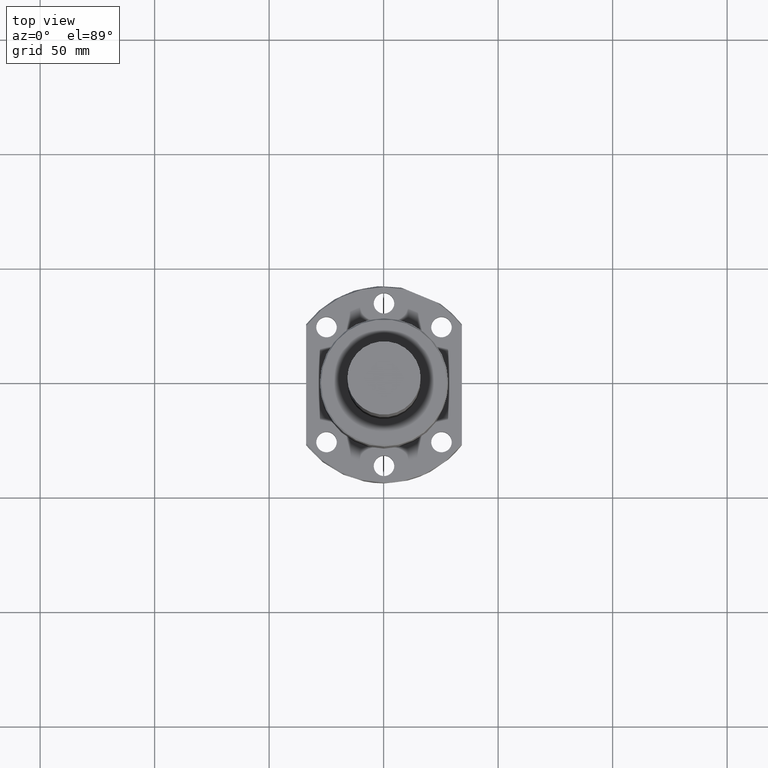
[diagram: clean part render]
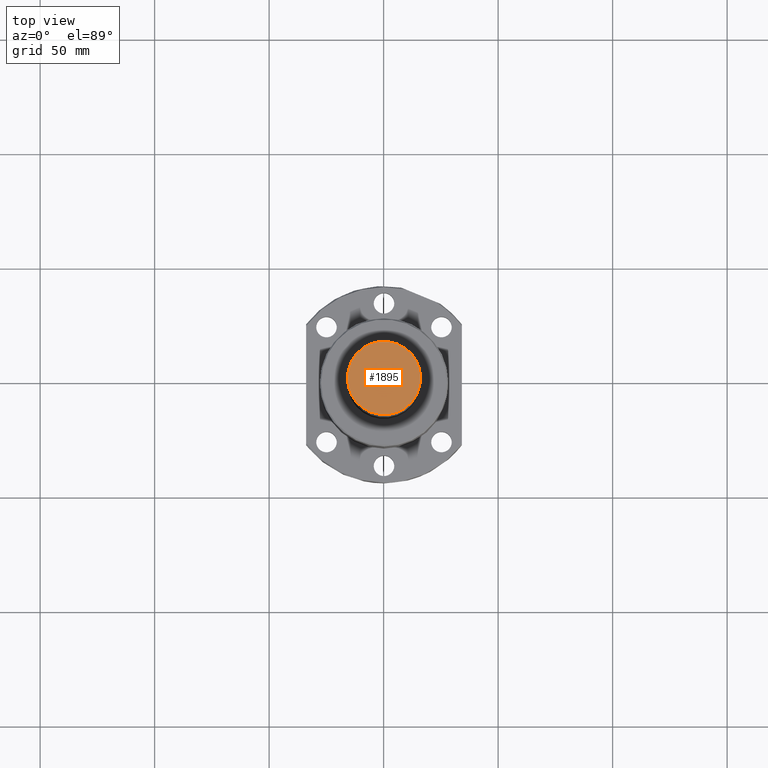
[diagram: same view with one face highlighted and labeled with its STEP entity id]
A machine part, top view. The second image highlights one B-rep face of the part: STEP entity #1895.
In plain terms, the highlighted planar face has unit normal (0, 0, 1).
Its self-contained STEP definition (entity closure, byte-faithful):
#59 = AXIS2_PLACEMENT_3D ( 'NONE', #1016, #996, #969 ) ;
#66 = AXIS2_PLACEMENT_3D ( 'NONE', #1200, #1177, #1168 ) ;
#91 = CIRCLE ( 'NONE', #66, 16.00000000000000000 ) ;
#110 = FACE_OUTER_BOUND ( 'NONE', #415, .T. ) ;
#305 = EDGE_CURVE ( 'NONE', #1320, #684, #91, .T. ) ;
#408 = ORIENTED_EDGE ( 'NONE', *, *, #1419, .T. ) ;
#415 = EDGE_LOOP ( 'NONE', ( #408, #523 ) ) ;
#431 = DIRECTION ( 'NONE',  ( 0.0000000000000000000, -0.0000000000000000000, 1.000000000000000000 ) ) ;
#523 = ORIENTED_EDGE ( 'NONE', *, *, #305, .T. ) ;
#684 = VERTEX_POINT ( 'NONE', #686 ) ;
#686 = CARTESIAN_POINT ( 'NONE',  ( 16.00000000000000000, 0.0000000000000000000, 0.0000000000000000000 ) ) ;
#741 = AXIS2_PLACEMENT_3D ( 'NONE', #1171, #431, #1042 ) ;
#969 = DIRECTION ( 'NONE',  ( 1.000000000000000000, 0.0000000000000000000, 0.0000000000000000000 ) ) ;
#996 = DIRECTION ( 'NONE',  ( 0.0000000000000000000, 0.0000000000000000000, 1.000000000000000000 ) ) ;
#1016 = CARTESIAN_POINT ( 'NONE',  ( -16.19200000000000000, -16.19200000000000000, 0.0000000000000000000 ) ) ;
#1026 = PLANE ( 'NONE',  #59 ) ;
#1042 = DIRECTION ( 'NONE',  ( 1.000000000000000000, 0.0000000000000000000, 0.0000000000000000000 ) ) ;
#1168 = DIRECTION ( 'NONE',  ( 1.000000000000000000, 0.0000000000000000000, 0.0000000000000000000 ) ) ;
#1171 = CARTESIAN_POINT ( 'NONE',  ( 0.0000000000000000000, 0.0000000000000000000, 0.0000000000000000000 ) ) ;
#1177 = DIRECTION ( 'NONE',  ( 0.0000000000000000000, -0.0000000000000000000, 1.000000000000000000 ) ) ;
#1200 = CARTESIAN_POINT ( 'NONE',  ( 0.0000000000000000000, 0.0000000000000000000, 0.0000000000000000000 ) ) ;
#1320 = VERTEX_POINT ( 'NONE', #2045 ) ;
#1419 = EDGE_CURVE ( 'NONE', #684, #1320, #1555, .T. ) ;
#1555 = CIRCLE ( 'NONE', #741, 16.00000000000000000 ) ;
#1895 = ADVANCED_FACE ( 'NONE', ( #110 ), #1026, .T. ) ;
#2045 = CARTESIAN_POINT ( 'NONE',  ( -16.00000000000000000, 1.959434878635765100E-015, 0.0000000000000000000 ) ) ;